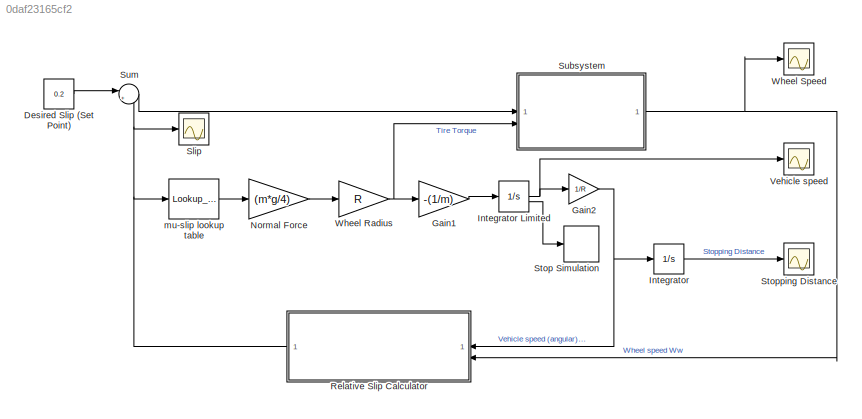
MODEL slx_0daf23165cf2
KIND model
CONFIG AbsTol = auto
CONFIG EnableMultiTasking = off
CONFIG FixedStep = auto
CONFIG MaxStep = auto
CONFIG MinStep = auto
CONFIG RelTol = 1e-3
CONFIG SampleTimeConstraint = Unconstrained
CONFIG SolverName = VariableStepAuto
CONFIG StartTime = 0.0
CONFIG StopTime = 15
WORKSPACE source: mxarray member
WORKSPACE I = 5
WORKSPACE R = 1.25
WORKSPACE g = 9.81
WORKSPACE m = 75
WORKSPACE v0 = 44
BLOCK [Constant] Desired Slip (Set Point) 
  Value = 0.2
BLOCK [Gain] Gain1
  Gain = -(1/m)
BLOCK [Gain] Gain2
  Gain = 1/R
BLOCK [Integrator] Integrator
BLOCK [Integrator] Integrator Limited
  InitialCondition = v0
  LimitOutput = on
  LowerSaturationLimit = 0
  ShowSaturationPort = on
  UpperSaturationLimit = 1000
BLOCK [Gain] Normal Force
  Gain = (m*g/4)
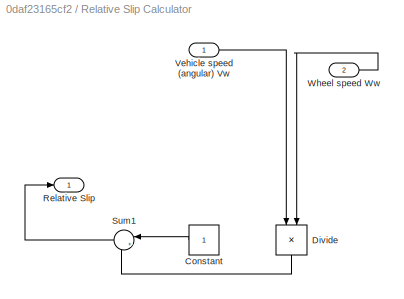
BLOCK [SubSystem] Relative Slip Calculator
BLOCK [Constant] Relative Slip Calculator/Constant
BLOCK [Product] Relative Slip Calculator/Divide
  Inputs = /*
  NameLocation = left
BLOCK [Outport] Relative Slip Calculator/Relative Slip
  VectorParamsAs1DForOutWhenUnconnected = off
BLOCK [Sum] Relative Slip Calculator/Sum1
  Inputs = |+-
BLOCK [Inport] Relative Slip Calculator/Vehicle speed (angular) Vw
BLOCK [Inport] Relative Slip Calculator/Wheel speed Ww
  Port = 2
BLOCK [Scope] Slip 
  Floating = off
  NumInputPorts = 1
  ScopeSpecificationString = Simulink.scopes.TimeScopeBlockCfg('CurrentConfiguration', extmgr.ConfigurationSet(extmgr.Configuration('Core','General UI',true),extmgr.Configuration('Core','Source UI',true),extmgr.Configuration('Sources','WiredSimulink',true,'DataLoggingVariableName','ScopeData1'),extmgr.Configuration('Visuals','Time Domain',true,'SerializedDisplays',{struct('MinYLimReal','-0.03698','MaxYLimReal','0.33279','YLab...<+1451ch>
BLOCK [Stop] Stop Simulation
BLOCK [Scope] Stopping Distance
  Floating = off
  NumInputPorts = 1
  ScopeSpecificationString = Simulink.scopes.TimeScopeBlockCfg('CurrentConfiguration', extmgr.ConfigurationSet(extmgr.Configuration('Core','General UI',true),extmgr.Configuration('Core','Source UI',true),extmgr.Configuration('Sources','WiredSimulink',true),extmgr.Configuration('Visuals','Time Domain',true,'SerializedDisplays',{struct('MinYLimReal','-37.79808','MaxYLimReal','340.18268','YLabelReal','','MinYLimMag','0.00000','M...<+1415ch>
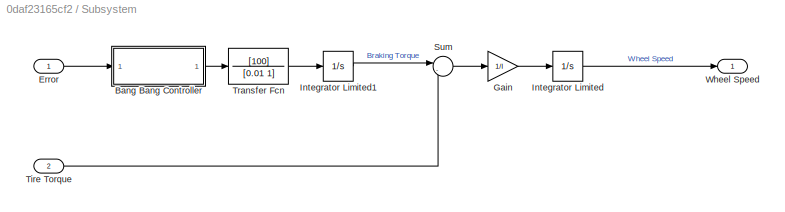
BLOCK [SubSystem] Subsystem
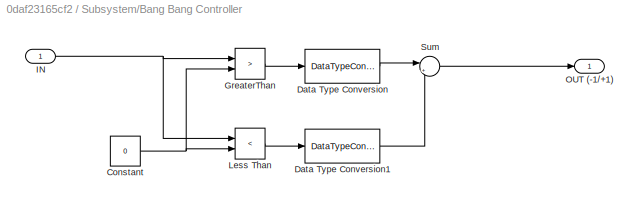
BLOCK [SubSystem] Subsystem/Bang Bang Controller
BLOCK [Constant] Subsystem/Bang Bang Controller/Constant
  Value = 0
BLOCK [DataTypeConversion] Subsystem/Bang Bang Controller/Data Type Conversion
  OutDataTypeStr = double
  SaturateOnIntegerOverflow = off
BLOCK [DataTypeConversion] Subsystem/Bang Bang Controller/Data Type Conversion1
  OutDataTypeStr = double
  SaturateOnIntegerOverflow = off
BLOCK [RelationalOperator] Subsystem/Bang Bang Controller/GreaterThan
  InputSameDT = off
  Operator = >
  OutDataTypeStr = boolean
  RndMeth = Simplest
BLOCK [Inport] Subsystem/Bang Bang Controller/IN
BLOCK [RelationalOperator] Subsystem/Bang Bang Controller/Less Than
  InputSameDT = off
  Operator = <
  OutDataTypeStr = boolean
  RndMeth = Simplest
BLOCK [Outport] Subsystem/Bang Bang Controller/OUT (-1//+1)
  VectorParamsAs1DForOutWhenUnconnected = off
BLOCK [Sum] Subsystem/Bang Bang Controller/Sum
  Inputs = |+-
BLOCK [Inport] Subsystem/Error
BLOCK [Gain] Subsystem/Gain
  Gain = 1/I
BLOCK [Integrator] Subsystem/Integrator Limited
  InitialCondition = v0/R
  LimitOutput = on
  LowerSaturationLimit = 0
  UpperSaturationLimit = 1000
BLOCK [Integrator] Subsystem/Integrator Limited1
  LimitOutput = on
  LowerSaturationLimit = 0
  UpperSaturationLimit = 1500
BLOCK [Sum] Subsystem/Sum
  Inputs = |-+
BLOCK [Inport] Subsystem/Tire Torque
  Port = 2
BLOCK [TransferFcn] Subsystem/Transfer Fcn
  Denominator = [0.01 1]
  Numerator = [100]
BLOCK [Outport] Subsystem/Wheel Speed
  VectorParamsAs1DForOutWhenUnconnected = off
BLOCK [Sum] Sum
  Inputs = |+-
BLOCK [Scope] Vehicle speed
  Floating = off
  NumInputPorts = 1
  ScopeSpecificationString = Simulink.scopes.TimeScopeBlockCfg('CurrentConfiguration', extmgr.ConfigurationSet(extmgr.Configuration('Core','General UI',true),extmgr.Configuration('Core','Source UI',true),extmgr.Configuration('Sources','WiredSimulink',true,'DataLoggingVariableName','ScopeData3'),extmgr.Configuration('Visuals','Time Domain',true,'SerializedDisplays',{struct('MinYLimReal','-2.1429','MaxYLimReal','49.12699','YLab...<+1497ch>
BLOCK [Gain] Wheel Radius
  Gain = R
BLOCK [Scope] Wheel Speed
  Floating = off
  NumInputPorts = 1
  ScopeSpecificationString = Simulink.scopes.TimeScopeBlockCfg('CurrentConfiguration', extmgr.ConfigurationSet(extmgr.Configuration('Core','General UI',true),extmgr.Configuration('Core','Source UI',true),extmgr.Configuration('Sources','WiredSimulink',true,'DataLoggingVariableName','ScopeData2'),extmgr.Configuration('Visuals','Time Domain',true,'SerializedDisplays',{struct('MinYLimReal','-2.50879','MaxYLimReal','39.38987','YLa...<+1561ch>
BLOCK [Lookup_n-D] mu-slip lookup table
  BreakpointsForDimension1 = [0,0.05,0.1,0.15,0.2,0.25,0.3,0.35,0.4,0.45,0.5,0.55,0.60,0.65,0.70,0.75,0.80,0.85,0.90,0.95,1]
  InputPortMap = u0
  InternalRulePriority = Speed
  NumberOfTableDimensions = 1
  RndMeth = Simplest
  Table = [0,0.4,0.8,0.97,1,0.98,0.96,0.94,0.92,0.9,0.88,0.855,0.83,0.81,0.79,0.77,0.75,0.73,0.72,0.71,0.7]
LINE Desired Slip (Set Point) :1 -> Sum:1
LINE Gain1:1 -> Integrator Limited:1
NET Gain2:1 -> Integrator:1, Relative Slip Calculator:1
NET Integrator Limited:1 -> Gain2:1, Vehicle speed:1
LINE Integrator Limited:2 -> Stop Simulation:1
LINE Integrator:1 -> Stopping Distance:1
LINE Normal Force:1 -> Wheel Radius:1
LINE Relative Slip Calculator/Constant:1 -> Relative Slip Calculator/Sum1:1
LINE Relative Slip Calculator/Divide:1 -> Relative Slip Calculator/Sum1:2
LINE Relative Slip Calculator/Sum1:1 -> Relative Slip Calculator/Relative Slip:1
LINE Relative Slip Calculator/Vehicle speed (angular) Vw:1 -> Relative Slip Calculator/Divide:1
LINE Relative Slip Calculator/Wheel speed Ww:1 -> Relative Slip Calculator/Divide:2
NET Relative Slip Calculator:1 -> Slip :1, Sum:2, mu-slip lookup table:1
NET Subsystem/Bang Bang Controller/Constant:1 -> Subsystem/Bang Bang Controller/GreaterThan:2, Subsystem/Bang Bang Controller/Less Than:2
LINE Subsystem/Bang Bang Controller/Data Type Conversion1:1 -> Subsystem/Bang Bang Controller/Sum:2
LINE Subsystem/Bang Bang Controller/Data Type Conversion:1 -> Subsystem/Bang Bang Controller/Sum:1
LINE Subsystem/Bang Bang Controller/GreaterThan:1 -> Subsystem/Bang Bang Controller/Data Type Conversion:1
NET Subsystem/Bang Bang Controller/IN:1 -> Subsystem/Bang Bang Controller/GreaterThan:1, Subsystem/Bang Bang Controller/Less Than:1
LINE Subsystem/Bang Bang Controller/Less Than:1 -> Subsystem/Bang Bang Controller/Data Type Conversion1:1
LINE Subsystem/Bang Bang Controller/Sum:1 -> Subsystem/Bang Bang Controller/OUT (-1//+1):1
LINE Subsystem/Bang Bang Controller:1 -> Subsystem/Transfer Fcn:1
LINE Subsystem/Error:1 -> Subsystem/Bang Bang Controller:1
LINE Subsystem/Gain:1 -> Subsystem/Integrator Limited:1
LINE Subsystem/Integrator Limited1:1 -> Subsystem/Sum:1
LINE Subsystem/Integrator Limited:1 -> Subsystem/Wheel Speed:1
LINE Subsystem/Sum:1 -> Subsystem/Gain:1
LINE Subsystem/Tire Torque:1 -> Subsystem/Sum:2
LINE Subsystem/Transfer Fcn:1 -> Subsystem/Integrator Limited1:1
NET Subsystem:1 -> Relative Slip Calculator:2, Wheel Speed:1
LINE Sum:1 -> Subsystem:1
NET Wheel Radius:1 -> Gain1:1, Subsystem:2
LINE mu-slip lookup table:1 -> Normal Force:1
note: NET lines group one-source signal fan-out (src -> all destinations, sorted); 1:1 wires keep LINE
